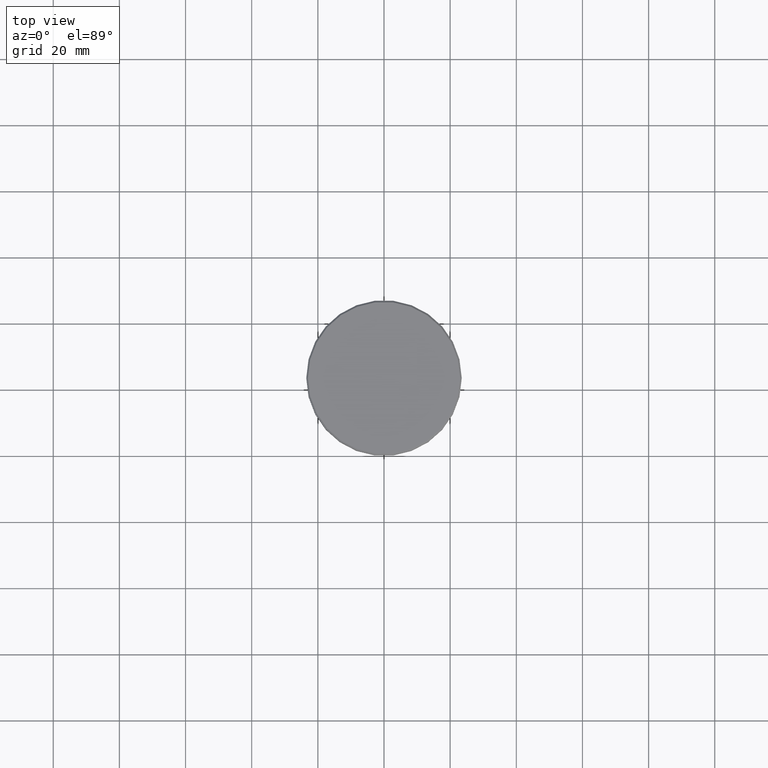
[diagram: clean part render]
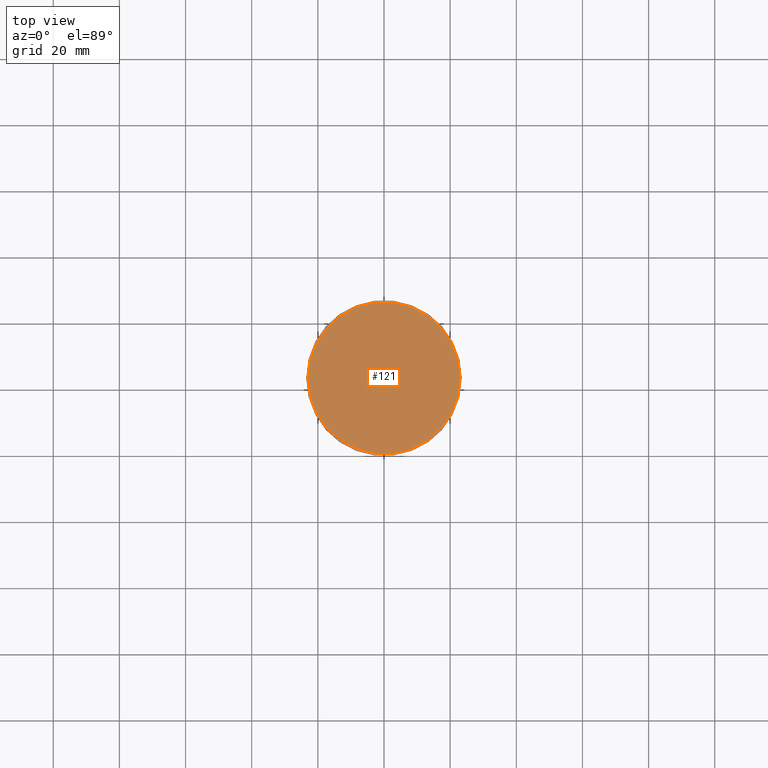
[diagram: same view with one face highlighted and labeled with its STEP entity id]
A machine part, top view. The second image highlights one B-rep face of the part: STEP entity #121.
In plain terms, the highlighted planar face has unit normal (0, -0, 1).
Its self-contained STEP definition (entity closure, byte-faithful):
#75 = DIRECTION ( 'NONE',  ( -0.000000000000000000, -0.000000000000000000, 1.000000000000000000 ) ) ;
#88 = DIRECTION ( 'NONE',  ( 1.000000000000000000, 0.000000000000000000, 0.000000000000000000 ) ) ;
#121 = ADVANCED_FACE ( 'NONE', ( #782 ), #1035, .T. ) ;
#199 = ORIENTED_EDGE ( 'NONE', *, *, #299, .T. ) ;
#206 = CIRCLE ( 'NONE', #539, 23.00000000000002487 ) ;
#299 = EDGE_CURVE ( 'NONE', #709, #757, #206, .T. ) ;
#366 = CARTESIAN_POINT ( 'NONE',  ( -23.00000000000002487, 0.000000000000000000, 0.000000000000000000 ) ) ;
#432 = DIRECTION ( 'NONE',  ( 1.000000000000000000, 0.000000000000000000, 0.000000000000000000 ) ) ;
#517 = EDGE_CURVE ( 'NONE', #757, #709, #559, .T. ) ;
#539 = AXIS2_PLACEMENT_3D ( 'NONE', #986, #75, #432 ) ;
#559 = CIRCLE ( 'NONE', #894, 23.00000000000002487 ) ;
#586 = DIRECTION ( 'NONE',  ( 1.000000000000000000, 0.000000000000000000, 0.000000000000000000 ) ) ;
#635 = EDGE_LOOP ( 'NONE', ( #199, #901 ) ) ;
#709 = VERTEX_POINT ( 'NONE', #366 ) ;
#757 = VERTEX_POINT ( 'NONE', #964 ) ;
#763 = DIRECTION ( 'NONE',  ( 0.000000000000000000, -0.000000000000000000, 1.000000000000000000 ) ) ;
#776 = CARTESIAN_POINT ( 'NONE',  ( 0.000000000000000000, 0.000000000000000000, 0.000000000000000000 ) ) ;
#782 = FACE_OUTER_BOUND ( 'NONE', #635, .T. ) ;
#825 = DIRECTION ( 'NONE',  ( -0.000000000000000000, -0.000000000000000000, 1.000000000000000000 ) ) ;
#844 = CARTESIAN_POINT ( 'NONE',  ( 0.000000000000000000, 0.000000000000000000, 0.000000000000000000 ) ) ;
#894 = AXIS2_PLACEMENT_3D ( 'NONE', #844, #825, #88 ) ;
#901 = ORIENTED_EDGE ( 'NONE', *, *, #517, .T. ) ;
#964 = CARTESIAN_POINT ( 'NONE',  ( 23.00000000000002487, 2.847303808017597717E-15, 0.000000000000000000 ) ) ;
#986 = CARTESIAN_POINT ( 'NONE',  ( 0.000000000000000000, 0.000000000000000000, 0.000000000000000000 ) ) ;
#1035 = PLANE ( 'NONE',  #1162 ) ;
#1162 = AXIS2_PLACEMENT_3D ( 'NONE', #776, #763, #586 ) ;